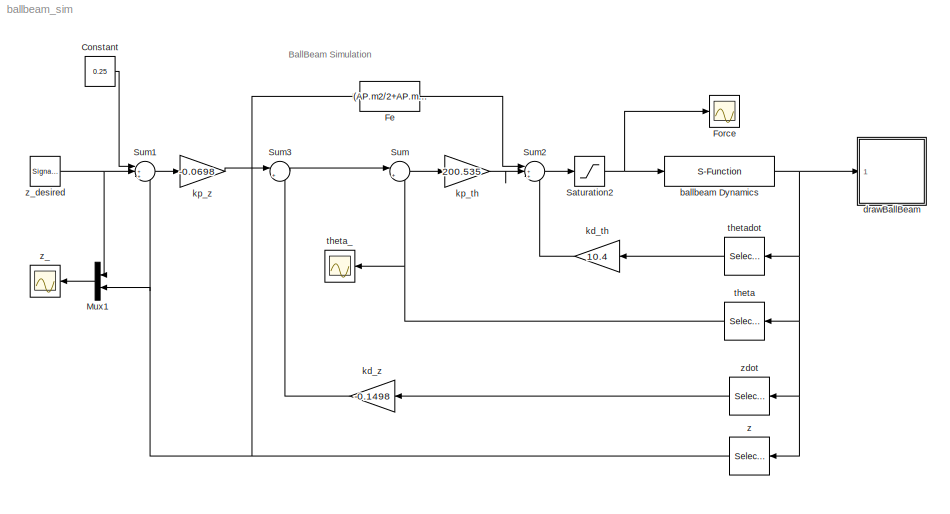
MODEL ballbeam_sim
KIND model
BLOCK [Constant] Constant
  SID = 45
  Value = 0.25
BLOCK [Fcn] Fe
  Expr = (AP.m2/2+AP.m1*u(1)/AP.L)*AP.g
  SID = 44
BLOCK [Scope] Force
  DataFormat = StructureWithTime
  Floating = off
  LimitDataPoints = off
  NumInputPorts = 1
  Ports = [1]
  SID = 18
  SampleTime = 0
  ShowLegends = off
  TimeRange = 100
  YMax = 15
  YMin = 7
BLOCK [Mux] Mux1
  DisplayOption = bar
  Inputs = 2
  Ports = [2, 1]
  SID = 19
BLOCK [Saturate] Saturation2
  InputPortMap = u0
  LowerLimit = -15
  Ports = [1, 1]
  SID = 21
  UpperLimit = 15
BLOCK [Sum] Sum
  IconShape = round
  InputSameDT = off
  Inputs = |+-
  OutDataTypeStr = Inherit: Inherit via internal rule
  Ports = [2, 1]
  SID = 22
  SaturateOnIntegerOverflow = off
BLOCK [Sum] Sum1
  IconShape = round
  InputSameDT = off
  Inputs = |++-
  OutDataTypeStr = Inherit: Inherit via internal rule
  Ports = [3, 1]
  SID = 23
  SaturateOnIntegerOverflow = off
BLOCK [Sum] Sum2
  IconShape = round
  InputSameDT = off
  Inputs = |++-
  OutDataTypeStr = Inherit: Inherit via internal rule
  Ports = [3, 1]
  SID = 24
  SaturateOnIntegerOverflow = off
BLOCK [Sum] Sum3
  IconShape = round
  InputSameDT = off
  Inputs = |+-
  OutDataTypeStr = Inherit: Inherit via internal rule
  Ports = [2, 1]
  SID = 25
  SaturateOnIntegerOverflow = off
BLOCK [S-Function] ballbeam Dynamics
  EnableBusSupport = off
  FunctionName = ballbeam_dynamics
  Parameters = AP
  Ports = [1, 1]
  SID = 20
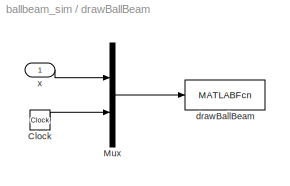
BLOCK [SubSystem] drawBallBeam
  Ports = [1]
  RequestExecContextInheritance = off
  SID = 26
BLOCK [Clock] drawBallBeam/Clock
  SID = 28
BLOCK [Mux] drawBallBeam/Mux
  DisplayOption = bar
  Inputs = 2
  Ports = [2, 1]
  SID = 29
BLOCK [MATLABFcn] drawBallBeam/drawBallBeam
  MATLABFcn = drawBallBeam(u,L,R)
  OutputDimensions = 0
  Ports = [1]
  SID = 30
  SampleTime = 0.01
BLOCK [Inport] drawBallBeam/x
  IconDisplay = Port number
  SID = 27
BLOCK [Gain] kd_th
  Gain = 10.4
  Multiplication = Matrix(K*u)
  OutDataTypeStr = Inherit: Inherit via internal rule
  ParamDataTypeStr = Inherit: Inherit via internal rule
  SID = 31
  SaturateOnIntegerOverflow = off
BLOCK [Gain] kd_z
  Gain = -0.1498
  Multiplication = Matrix(K*u)
  OutDataTypeStr = Inherit: Inherit via internal rule
  ParamDataTypeStr = Inherit: Inherit via internal rule
  SID = 32
  SaturateOnIntegerOverflow = off
BLOCK [Gain] kp_th
  Gain = 200.535
  Multiplication = Matrix(K*u)
  OutDataTypeStr = Inherit: Inherit via internal rule
  ParamDataTypeStr = Inherit: Inherit via internal rule
  SID = 33
  SaturateOnIntegerOverflow = off
BLOCK [Gain] kp_z
  Gain = -0.0698
  Multiplication = Matrix(K*u)
  OutDataTypeStr = Inherit: Inherit via internal rule
  ParamDataTypeStr = Inherit: Inherit via internal rule
  SID = 34
  SaturateOnIntegerOverflow = off
BLOCK [Selector] theta
  Indices = [1]
  InputPortWidth = 4
  Ports = [1, 1]
  SID = 35
BLOCK [Scope] theta_
  DataFormat = StructureWithTime
  Floating = off
  LimitDataPoints = off
  NumInputPorts = 1
  Ports = [1]
  SID = 36
  SampleTime = 0
  SaveName = ScopeData1
  ShowLegends = off
  TimeRange = 100
  YMax = 0.0225
  YMin = -0.02
BLOCK [Selector] thetadot
  Indices = [3]
  InputPortWidth = 4
  Ports = [1, 1]
  SID = 37
BLOCK [Selector] z
  Indices = [2]
  InputPortWidth = 4
  Ports = [1, 1]
  SID = 38
BLOCK [Scope] z_
  DataFormat = StructureWithTime
  Floating = off
  LimitDataPoints = off
  NumInputPorts = 1
  Ports = [1]
  SID = 39
  SampleTime = 0
  SaveName = ScopeData2
  ShowLegends = off
  TimeRange = 100
  YMax = 0.4
  YMin = -0.15
BLOCK [SignalGenerator] z_desired
  Amplitude = 0.125
  Frequency = .1
  Ports = [0, 1]
  SID = 40
  WaveForm = square
BLOCK [Selector] zdot
  Indices = [4]
  InputPortWidth = 4
  Ports = [1, 1]
  SID = 41
ANNOTATION (root): BallBeam Simulation
LINE Constant:1 -> Sum1:1
LINE Fe:1 -> Sum2:1
LINE Mux1:1 -> z_:1
NET Saturation2:1 -> Force:1, ballbeam Dynamics:1
LINE Sum1:1 -> kp_z:1
LINE Sum2:1 -> Saturation2:1
LINE Sum3:1 -> Sum:1
LINE Sum:1 -> kp_th:1
NET ballbeam Dynamics:1 -> drawBallBeam:1, theta:1, thetadot:1, z:1, zdot:1
LINE drawBallBeam/Clock:1 -> drawBallBeam/Mux:2
LINE drawBallBeam/Mux:1 -> drawBallBeam/drawBallBeam:1
LINE drawBallBeam/x:1 -> drawBallBeam/Mux:1
LINE kd_th:1 -> Sum2:3
LINE kd_z:1 -> Sum3:2
LINE kp_th:1 -> Sum2:2
LINE kp_z:1 -> Sum3:1
NET theta:1 -> Sum:2, theta_:1
LINE thetadot:1 -> kd_th:1
NET z:1 -> Fe:1, Mux1:2, Sum1:3
NET z_desired:1 -> Mux1:1, Sum1:2
LINE zdot:1 -> kd_z:1
note: NET lines group one-source signal fan-out (src -> all destinations, sorted); 1:1 wires keep LINE
